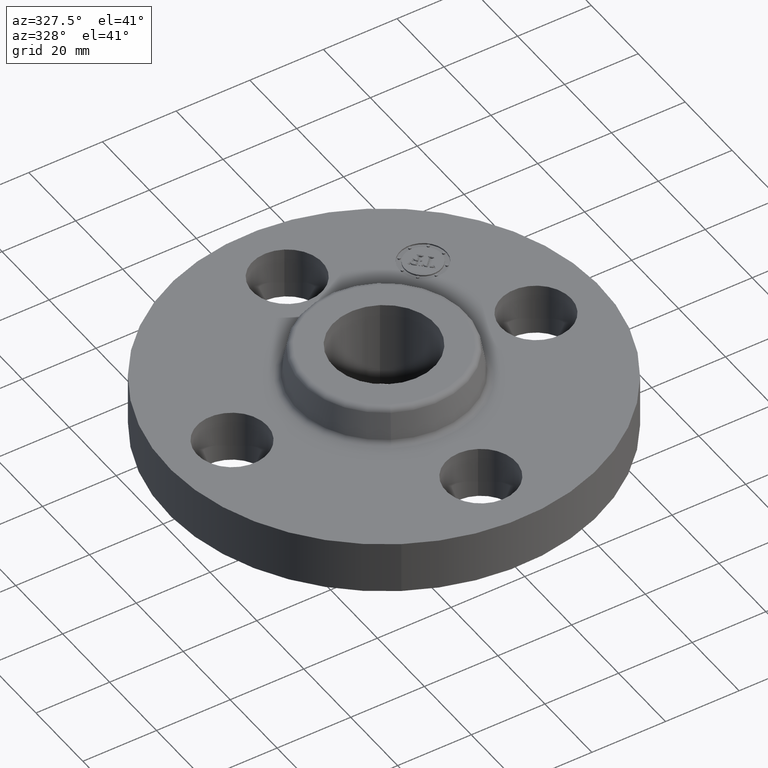
[diagram: clean part render]
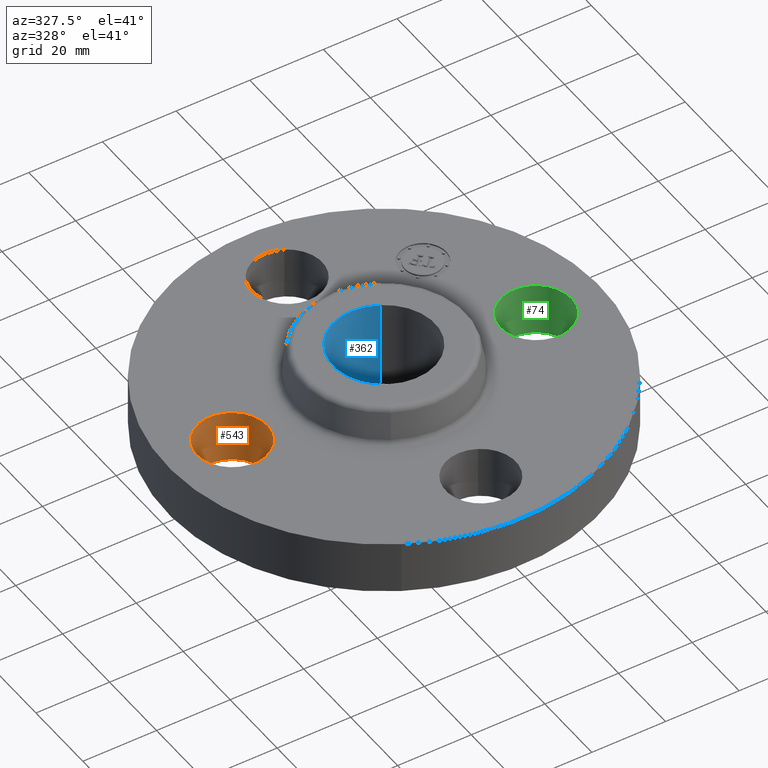
[diagram: same view with three faces highlighted in distinct colors, each labeled with its STEP entity id]
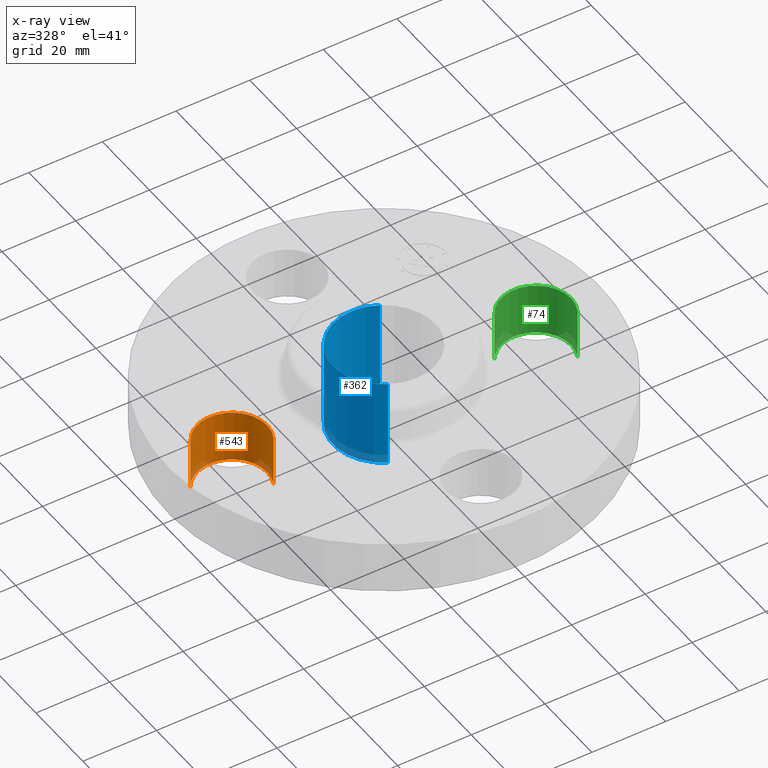
[diagram: x-ray of the same camera — body ghosted, the three highlighted faces saturated]
A machine part, auxiliary view with three faces highlighted in distinct colors.
The next image is the same camera in x-ray (body ghosted, the three faces saturated) — at least one of them is partly hidden behind the body in this view.
Their STEP definitions:

[orange] entity #543 — the highlighted cylindrical surface (partial cylindrical patch) has radius 9.525 mm, axis along (-0, 0, -1).
#432=AXIS2_PLACEMENT_3D('Circle Axis2P3D',#430,#431,$) ;
#504=AXIS2_PLACEMENT_3D('Cylinder Axis2P3D',#501,#502,#503) ;
#534=AXIS2_PLACEMENT_3D('Circle Axis2P3D',#532,#533,$) ;
#425=CARTESIAN_POINT('Vertex',(-1.2959065393,-0.179784576977,0.)) ;
#427=CARTESIAN_POINT('Vertex',(-1.95409346072,0.179784576977,0.)) ;
#430=CARTESIAN_POINT('Axis2P3D Location',(-1.62500000001,-2.09805925913E-016,0.)) ;
#501=CARTESIAN_POINT('Axis2P3D Location',(-1.62500000001,-1.99005104862E-016,0.556062992128)) ;
#506=CARTESIAN_POINT('Line Origine',(-1.2959065393,-0.179784576977,0.280000000001)) ;
#510=CARTESIAN_POINT('Vertex',(-1.2959065393,-0.179784576977,0.560000000002)) ;
#513=CARTESIAN_POINT('Line Origine',(-1.95409346072,0.179784576977,0.280000000001)) ;
#517=CARTESIAN_POINT('Vertex',(-1.95409346072,0.179784576977,0.560000000002)) ;
#532=CARTESIAN_POINT('Axis2P3D Location',(-1.62500000001,-1.99005104862E-016,0.560000000002)) ;
#431=DIRECTION('Axis2P3D Direction',(0.,0.,-0.0393700787402)) ;
#502=DIRECTION('Axis2P3D Direction',(-0.,0.,-0.0393700787402)) ;
#503=DIRECTION('Axis2P3D XDirection',(-0.0345504945626,0.0188750212049,0.)) ;
#507=DIRECTION('Vector Direction',(0.,0.,-0.0393700787402)) ;
#514=DIRECTION('Vector Direction',(0.,0.,-0.0393700787402)) ;
#533=DIRECTION('Axis2P3D Direction',(-0.,0.,-0.0393700787402)) ;
#508=VECTOR('Line Direction',#507,0.0393700787402) ;
#515=VECTOR('Line Direction',#514,0.0393700787402) ;
#538=ORIENTED_EDGE('',*,*,#519,.F.) ;
#539=ORIENTED_EDGE('',*,*,#434,.T.) ;
#540=ORIENTED_EDGE('',*,*,#512,.T.) ;
#541=ORIENTED_EDGE('',*,*,#536,.F.) ;
#543=ADVANCED_FACE('PartBody',(#542),#505,.F.) ;
#433=CIRCLE('generated circle',#432,0.375000000002) ;
#535=CIRCLE('generated circle',#534,0.375000000002) ;
#505=CYLINDRICAL_SURFACE('generated cylinder',#504,0.375000000002) ;
#434=EDGE_CURVE('',#428,#426,#433,.T.) ;
#512=EDGE_CURVE('',#426,#511,#509,.F.) ;
#519=EDGE_CURVE('',#428,#518,#516,.F.) ;
#536=EDGE_CURVE('',#518,#511,#535,.T.) ;
#537=EDGE_LOOP('',(#538,#539,#540,#541)) ;
#542=FACE_OUTER_BOUND('',#537,.T.) ;
#509=LINE('Line',#506,#508) ;
#516=LINE('Line',#513,#515) ;
#426=VERTEX_POINT('',#425) ;
#428=VERTEX_POINT('',#427) ;
#511=VERTEX_POINT('',#510) ;
#518=VERTEX_POINT('',#517) ;

[blue] entity #362 — the highlighted cylindrical surface (partial cylindrical patch) has radius 13.843 mm, axis along (0, 0, -1).
#303=AXIS2_PLACEMENT_3D('Circle Axis2P3D',#301,#302,$) ;
#323=AXIS2_PLACEMENT_3D('Cylinder Axis2P3D',#320,#321,#322) ;
#353=AXIS2_PLACEMENT_3D('Circle Axis2P3D',#351,#352,$) ;
#301=CARTESIAN_POINT('Axis2P3D Location',(0.,0.,0.940000000004)) ;
#305=CARTESIAN_POINT('Vertex',(-0.26128691854,-0.478282496232,0.940000000004)) ;
#307=CARTESIAN_POINT('Vertex',(0.26128691854,0.478282496232,0.940000000004)) ;
#320=CARTESIAN_POINT('Axis2P3D Location',(0.,0.,0.470000000002)) ;
#325=CARTESIAN_POINT('Line Origine',(0.26128691854,0.478282496232,0.470000000002)) ;
#329=CARTESIAN_POINT('Vertex',(0.26128691854,0.478282496232,-6.64385432059E-015)) ;
#336=CARTESIAN_POINT('Vertex',(-0.26128691854,-0.478282496232,-6.64385432059E-015)) ;
#339=CARTESIAN_POINT('Line Origine',(-0.26128691854,-0.478282496232,0.470000000002)) ;
#351=CARTESIAN_POINT('Axis2P3D Location',(0.,0.,-6.71378962923E-015)) ;
#302=DIRECTION('Axis2P3D Direction',(0.,0.,-0.0393700787402)) ;
#321=DIRECTION('Axis2P3D Direction',(0.,0.,-0.0393700787402)) ;
#322=DIRECTION('Axis2P3D XDirection',(-0.0188750212049,-0.0345504945626,0.)) ;
#326=DIRECTION('Vector Direction',(0.,0.,-0.0393700787402)) ;
#340=DIRECTION('Vector Direction',(0.,0.,-0.0393700787402)) ;
#352=DIRECTION('Axis2P3D Direction',(0.,0.,-0.0393700787402)) ;
#327=VECTOR('Line Direction',#326,0.0393700787402) ;
#341=VECTOR('Line Direction',#340,0.0393700787402) ;
#357=ORIENTED_EDGE('',*,*,#309,.F.) ;
#358=ORIENTED_EDGE('',*,*,#343,.T.) ;
#359=ORIENTED_EDGE('',*,*,#355,.T.) ;
#360=ORIENTED_EDGE('',*,*,#331,.F.) ;
#362=ADVANCED_FACE('PartBody',(#361),#324,.F.) ;
#304=CIRCLE('generated circle',#303,0.545000000002) ;
#354=CIRCLE('generated circle',#353,0.545000000002) ;
#324=CYLINDRICAL_SURFACE('generated cylinder',#323,0.545000000002) ;
#309=EDGE_CURVE('',#306,#308,#304,.T.) ;
#331=EDGE_CURVE('',#308,#330,#328,.T.) ;
#343=EDGE_CURVE('',#306,#337,#342,.T.) ;
#355=EDGE_CURVE('',#337,#330,#354,.T.) ;
#356=EDGE_LOOP('',(#357,#358,#359,#360)) ;
#361=FACE_OUTER_BOUND('',#356,.T.) ;
#328=LINE('Line',#325,#327) ;
#342=LINE('Line',#339,#341) ;
#306=VERTEX_POINT('',#305) ;
#308=VERTEX_POINT('',#307) ;
#330=VERTEX_POINT('',#329) ;
#337=VERTEX_POINT('',#336) ;

[green] entity #74 — the highlighted cylindrical surface (partial cylindrical patch) has radius 9.525 mm, axis along (0, -0, -1).
#38=AXIS2_PLACEMENT_3D('Cylinder Axis2P3D',#35,#36,#37) ;
#51=AXIS2_PLACEMENT_3D('Circle Axis2P3D',#49,#50,$) ;
#65=AXIS2_PLACEMENT_3D('Circle Axis2P3D',#63,#64,$) ;
#35=CARTESIAN_POINT('Axis2P3D Location',(1.62500000001,0.,0.556062992128)) ;
#40=CARTESIAN_POINT('Line Origine',(1.2959065393,0.179784576977,0.280000000001)) ;
#44=CARTESIAN_POINT('Vertex',(1.2959065393,0.179784576977,0.)) ;
#46=CARTESIAN_POINT('Vertex',(1.2959065393,0.179784576977,0.560000000002)) ;
#49=CARTESIAN_POINT('Axis2P3D Location',(1.62500000001,0.,0.)) ;
#53=CARTESIAN_POINT('Vertex',(1.95409346072,-0.179784576977,0.)) ;
#56=CARTESIAN_POINT('Line Origine',(1.95409346072,-0.179784576977,0.280000000001)) ;
#60=CARTESIAN_POINT('Vertex',(1.95409346072,-0.179784576977,0.560000000002)) ;
#63=CARTESIAN_POINT('Axis2P3D Location',(1.62500000001,0.,0.560000000002)) ;
#36=DIRECTION('Axis2P3D Direction',(0.,-0.,-0.0393700787402)) ;
#37=DIRECTION('Axis2P3D XDirection',(0.0345504945626,-0.0188750212049,0.)) ;
#41=DIRECTION('Vector Direction',(0.,0.,-0.0393700787402)) ;
#50=DIRECTION('Axis2P3D Direction',(0.,-0.,-0.0393700787402)) ;
#57=DIRECTION('Vector Direction',(0.,0.,-0.0393700787402)) ;
#64=DIRECTION('Axis2P3D Direction',(0.,-0.,-0.0393700787402)) ;
#42=VECTOR('Line Direction',#41,0.0393700787402) ;
#58=VECTOR('Line Direction',#57,0.0393700787402) ;
#69=ORIENTED_EDGE('',*,*,#48,.F.) ;
#70=ORIENTED_EDGE('',*,*,#55,.T.) ;
#71=ORIENTED_EDGE('',*,*,#62,.T.) ;
#72=ORIENTED_EDGE('',*,*,#67,.F.) ;
#74=ADVANCED_FACE('PartBody',(#73),#39,.F.) ;
#52=CIRCLE('generated circle',#51,0.375000000001) ;
#66=CIRCLE('generated circle',#65,0.375000000001) ;
#39=CYLINDRICAL_SURFACE('generated cylinder',#38,0.375000000001) ;
#48=EDGE_CURVE('',#45,#47,#43,.F.) ;
#55=EDGE_CURVE('',#45,#54,#52,.T.) ;
#62=EDGE_CURVE('',#54,#61,#59,.F.) ;
#67=EDGE_CURVE('',#47,#61,#66,.T.) ;
#68=EDGE_LOOP('',(#69,#70,#71,#72)) ;
#73=FACE_OUTER_BOUND('',#68,.T.) ;
#43=LINE('Line',#40,#42) ;
#59=LINE('Line',#56,#58) ;
#45=VERTEX_POINT('',#44) ;
#47=VERTEX_POINT('',#46) ;
#54=VERTEX_POINT('',#53) ;
#61=VERTEX_POINT('',#60) ;